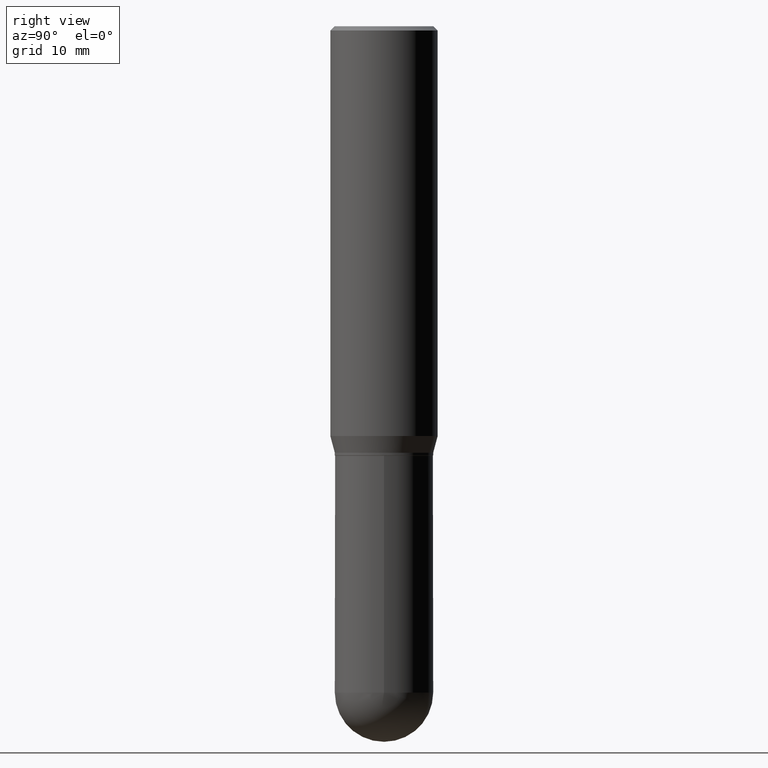
[diagram: clean part render]
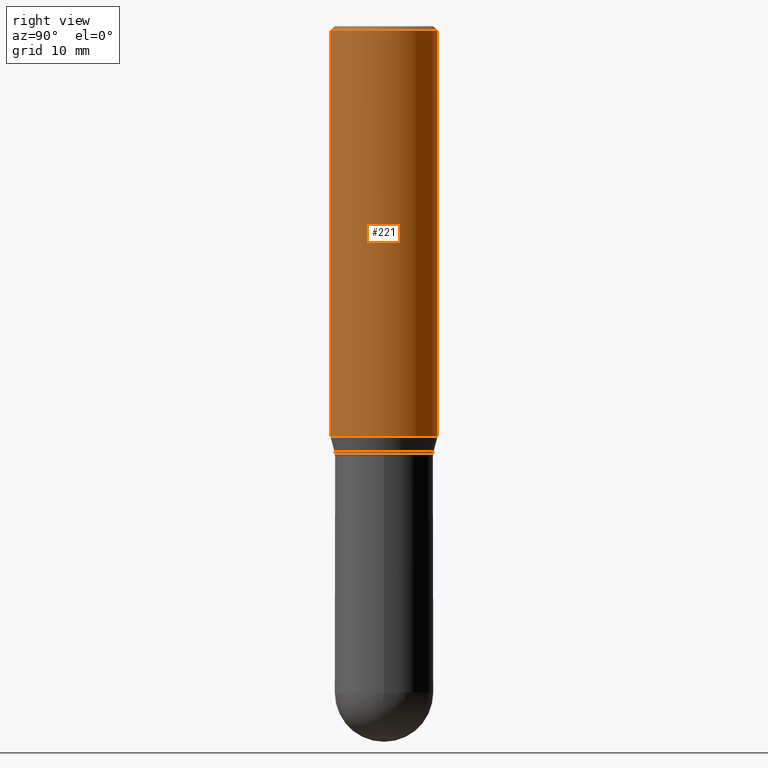
[diagram: same view with one face highlighted and labeled with its STEP entity id]
A machine part, right view. The second image highlights one B-rep face of the part: STEP entity #221.
In plain terms, the highlighted cylindrical surface (partial cylindrical patch) has radius 4.7625 mm, axis along (-0, 0, 1).
Its self-contained STEP definition (entity closure, byte-faithful):
#19 = CARTESIAN_POINT ( 'NONE',  ( 1.332267629550222953E-15, 0.1874999999999999445, -0.01500000000000081303 ) ) ;
#49 = CARTESIAN_POINT ( 'NONE',  ( 3.500846880770375597E-29, -4.999787104516626728E-15, -1.431780007401925348 ) ) ;
#79 = VERTEX_POINT ( 'NONE', #280 ) ;
#80 = DIRECTION ( 'NONE',  ( -2.445101106784506129E-29, 3.492007905312998807E-15, 1.000000000000000000 ) ) ;
#92 = EDGE_CURVE ( 'NONE', #431, #105, #222, .T. ) ;
#97 = AXIS2_PLACEMENT_3D ( 'NONE', #364, #326, #494 ) ;
#105 = VERTEX_POINT ( 'NONE', #246 ) ;
#137 = LINE ( 'NONE', #217, #322 ) ;
#142 = ORIENTED_EDGE ( 'NONE', *, *, #449, .F. ) ;
#164 = LINE ( 'NONE', #407, #504 ) ;
#176 = AXIS2_PLACEMENT_3D ( 'NONE', #49, #496, #249 ) ;
#183 = CIRCLE ( 'NONE', #97, 0.1875000000000000278 ) ;
#187 = ORIENTED_EDGE ( 'NONE', *, *, #379, .F. ) ;
#217 = CARTESIAN_POINT ( 'NONE',  ( -1.309305502066175008E-15, -0.1875000000000000278, 6.547514822461873257E-16 ) ) ;
#221 = ADVANCED_FACE ( 'NONE', ( #303 ), #486, .T. ) ;
#222 = CIRCLE ( 'NONE', #176, 0.1875000000000000278 ) ;
#225 = DIRECTION ( 'NONE',  ( -6.982962677686265922E-15, -1.000000000000000000, 3.492007905312998413E-15 ) ) ;
#246 = CARTESIAN_POINT ( 'NONE',  ( 1.332267629550222558E-15, 0.1874999999999950318, -1.431780007401926014 ) ) ;
#247 = CARTESIAN_POINT ( 'NONE',  ( -1.309305502066140101E-15, -0.1875000000000049960, -1.431780007401924903 ) ) ;
#249 = DIRECTION ( 'NONE',  ( -6.982962677686265922E-15, -1.000000000000000000, 2.913971193241880372E-15 ) ) ;
#272 = CARTESIAN_POINT ( 'NONE',  ( 0.000000000000000000, 0.000000000000000000, 0.000000000000000000 ) ) ;
#280 = CARTESIAN_POINT ( 'NONE',  ( -1.309305502066174614E-15, -0.1875000000000000833, -0.01499999999999950331 ) ) ;
#303 = FACE_OUTER_BOUND ( 'NONE', #327, .T. ) ;
#322 = VECTOR ( 'NONE', #506, 39.37007874015748143 ) ;
#325 = VERTEX_POINT ( 'NONE', #19 ) ;
#326 = DIRECTION ( 'NONE',  ( -2.445101106784506129E-29, 3.492007905312998807E-15, 1.000000000000000000 ) ) ;
#327 = EDGE_LOOP ( 'NONE', ( #346, #343, #187, #142 ) ) ;
#343 = ORIENTED_EDGE ( 'NONE', *, *, #404, .T. ) ;
#346 = ORIENTED_EDGE ( 'NONE', *, *, #92, .T. ) ;
#364 = CARTESIAN_POINT ( 'NONE',  ( 3.667651660176797518E-31, -5.238011857969553431E-17, -0.01500000000000015730 ) ) ;
#379 = EDGE_CURVE ( 'NONE', #79, #325, #183, .T. ) ;
#404 = EDGE_CURVE ( 'NONE', #105, #325, #164, .T. ) ;
#407 = CARTESIAN_POINT ( 'NONE',  ( 1.332267629550187651E-15, 0.1875000000000000278, -6.547514822461873257E-16 ) ) ;
#431 = VERTEX_POINT ( 'NONE', #247 ) ;
#449 = EDGE_CURVE ( 'NONE', #431, #79, #137, .T. ) ;
#462 = DIRECTION ( 'NONE',  ( -2.445101106784506129E-29, 3.492007905312998807E-15, 1.000000000000000000 ) ) ;
#463 = AXIS2_PLACEMENT_3D ( 'NONE', #272, #80, #225 ) ;
#486 = CYLINDRICAL_SURFACE ( 'NONE', #463, 0.1875000000000000278 ) ;
#494 = DIRECTION ( 'NONE',  ( -6.982962677686265922E-15, -1.000000000000000000, 3.494488891895536035E-15 ) ) ;
#496 = DIRECTION ( 'NONE',  ( -2.445101106784506129E-29, 3.492007905312998807E-15, 1.000000000000000000 ) ) ;
#504 = VECTOR ( 'NONE', #462, 39.37007874015748143 ) ;
#506 = DIRECTION ( 'NONE',  ( -2.445101106784506129E-29, 3.492007905312998807E-15, 1.000000000000000000 ) ) ;